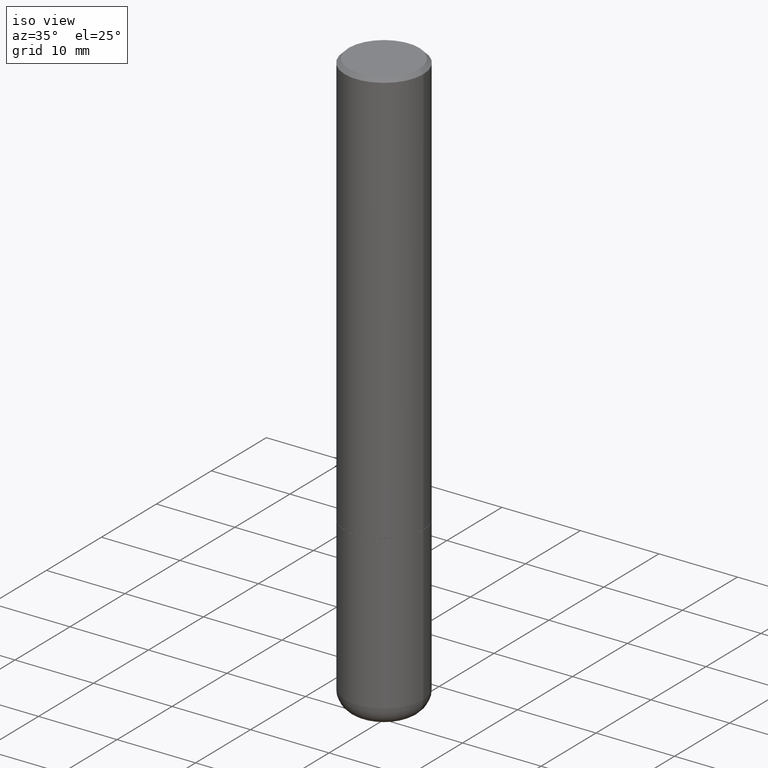
[diagram: clean part render]
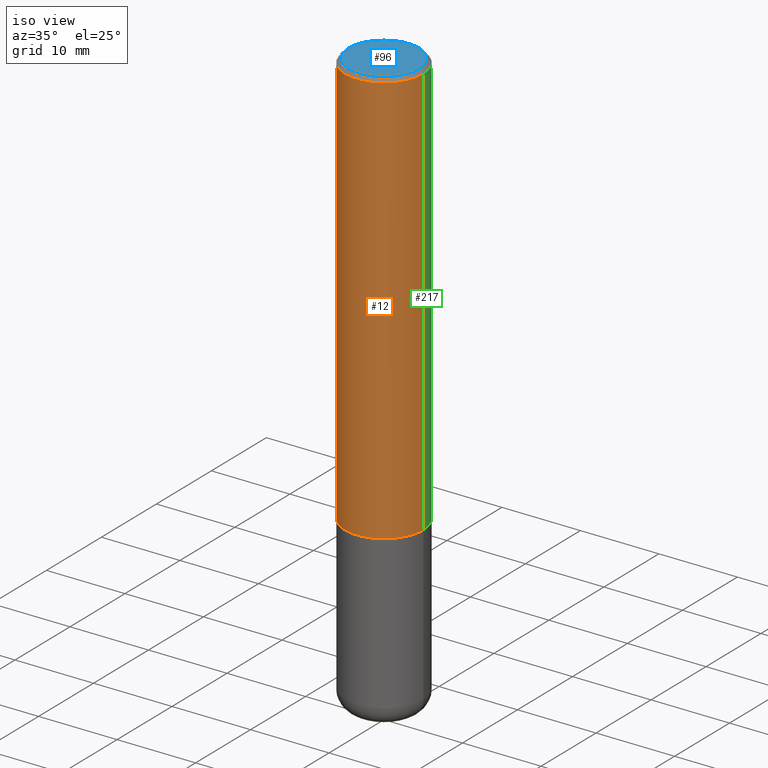
[diagram: same view with three faces highlighted in distinct colors, each labeled with its STEP entity id]
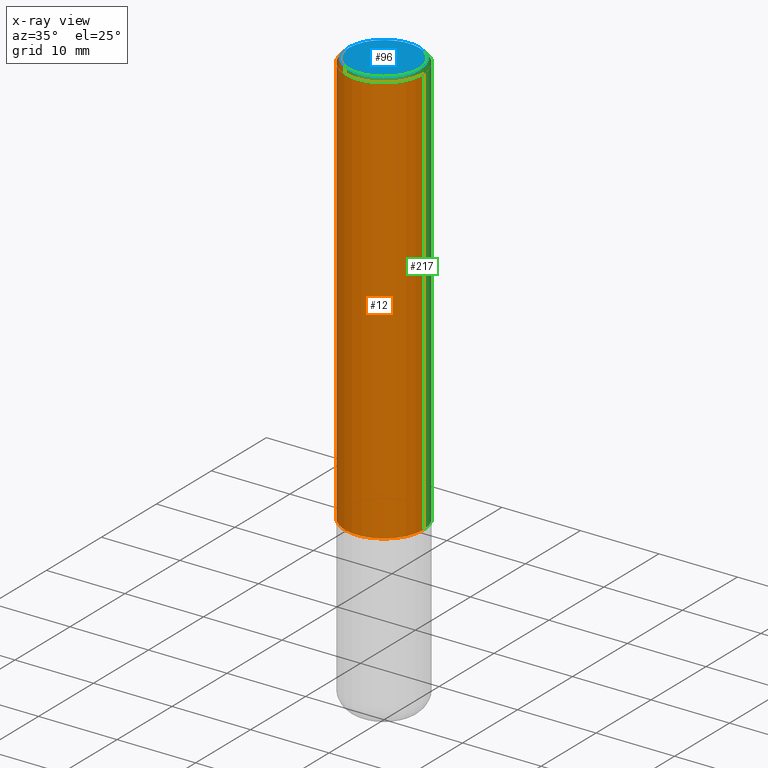
[diagram: x-ray of the same camera — body ghosted, the three highlighted faces saturated]
A machine part, iso view with three faces highlighted in distinct colors.
The next image is the same camera in x-ray (body ghosted, the three faces saturated) — at least one of them is partly hidden behind the body in this view.
Their STEP definitions:

[orange] entity #12 — the highlighted cylindrical surface (partial cylindrical patch) has radius 5 mm, axis along (-0, 0, 1).
#12 = ADVANCED_FACE ( 'NONE', ( #133 ), #412, .T. ) ;
#15 = EDGE_CURVE ( 'NONE', #222, #354, #60, .T. ) ;
#38 = VERTEX_POINT ( 'NONE', #95 ) ;
#60 = LINE ( 'NONE', #125, #128 ) ;
#74 = EDGE_CURVE ( 'NONE', #178, #222, #143, .T. ) ;
#89 = CIRCLE ( 'NONE', #406, 0.1968500000000000527 ) ;
#95 = CARTESIAN_POINT ( 'NONE',  ( -0.1968500000000000527, 1.304766576325678902E-15, -0.02000000000000004205 ) ) ;
#100 = DIRECTION ( 'NONE',  ( -2.445468806185136597E-29, 3.491481338843145583E-15, 1.000000000000000000 ) ) ;
#122 = AXIS2_PLACEMENT_3D ( 'NONE', #131, #100, #289 ) ;
#125 = CARTESIAN_POINT ( 'NONE',  ( 0.1968500000000001915, -1.374596203102542989E-15, 9.598753983154309266E-30 ) ) ;
#128 = VECTOR ( 'NONE', #250, 39.37007874015748143 ) ;
#131 = CARTESIAN_POINT ( 'NONE',  ( 5.100514289060338336E-29, -7.282182628425147921E-15, -2.085699999999999665 ) ) ;
#133 = FACE_OUTER_BOUND ( 'NONE', #337, .T. ) ;
#138 = DIRECTION ( 'NONE',  ( -2.445468806185136877E-29, 3.491481338843145188E-15, 1.000000000000000000 ) ) ;
#143 = CIRCLE ( 'NONE', #122, 0.1968500000000002748 ) ;
#145 = CARTESIAN_POINT ( 'NONE',  ( -0.1968500000000001915, 1.398703375343758577E-15, -9.682923725166790684E-30 ) ) ;
#165 = CARTESIAN_POINT ( 'NONE',  ( 0.000000000000000000, 0.000000000000000000, 0.000000000000000000 ) ) ;
#169 = CARTESIAN_POINT ( 'NONE',  ( -0.1968500000000002748, -2.277302752257245061E-15, -2.085699999999999665 ) ) ;
#172 = LINE ( 'NONE', #145, #385 ) ;
#178 = VERTEX_POINT ( 'NONE', #169 ) ;
#189 = ORIENTED_EDGE ( 'NONE', *, *, #345, .F. ) ;
#208 = ORIENTED_EDGE ( 'NONE', *, *, #15, .T. ) ;
#216 = DIRECTION ( 'NONE',  ( 1.000000000000000000, -6.982962677686266711E-15, 4.876176775795935793E-29 ) ) ;
#222 = VERTEX_POINT ( 'NONE', #297 ) ;
#235 = EDGE_CURVE ( 'NONE', #178, #38, #172, .T. ) ;
#239 = DIRECTION ( 'NONE',  ( 1.000000000000000000, -6.982962677686266711E-15, 0.000000000000000000 ) ) ;
#250 = DIRECTION ( 'NONE',  ( -2.445468806185136877E-29, 3.491481338843145188E-15, 1.000000000000000000 ) ) ;
#251 = AXIS2_PLACEMENT_3D ( 'NONE', #165, #315, #216 ) ;
#275 = ORIENTED_EDGE ( 'NONE', *, *, #74, .T. ) ;
#289 = DIRECTION ( 'NONE',  ( 1.000000000000000000, -6.982962677686269077E-15, 0.000000000000000000 ) ) ;
#297 = CARTESIAN_POINT ( 'NONE',  ( 0.1968500000000002748, -8.656778831527692685E-15, -2.085699999999999665 ) ) ;
#305 = DIRECTION ( 'NONE',  ( -2.445468806185136597E-29, 3.491481338843145583E-15, 1.000000000000000000 ) ) ;
#315 = DIRECTION ( 'NONE',  ( -2.445468806185136597E-29, 3.491481338843145583E-15, 1.000000000000000000 ) ) ;
#337 = EDGE_LOOP ( 'NONE', ( #368, #275, #208, #189 ) ) ;
#345 = EDGE_CURVE ( 'NONE', #38, #354, #89, .T. ) ;
#354 = VERTEX_POINT ( 'NONE', #395 ) ;
#368 = ORIENTED_EDGE ( 'NONE', *, *, #235, .F. ) ;
#385 = VECTOR ( 'NONE', #138, 39.37007874015748143 ) ;
#395 = CARTESIAN_POINT ( 'NONE',  ( 0.1968500000000000527, -1.420318657638189516E-15, -0.02000000000000004205 ) ) ;
#396 = CARTESIAN_POINT ( 'NONE',  ( 4.890937612370283668E-31, -6.982962677686305168E-17, -0.02000000000000004205 ) ) ;
#406 = AXIS2_PLACEMENT_3D ( 'NONE', #396, #305, #239 ) ;
#412 = CYLINDRICAL_SURFACE ( 'NONE', #251, 0.1968500000000001915 ) ;

[blue] entity #96 — the highlighted planar face has unit normal (0, -0, -1).
#7 = DIRECTION ( 'NONE',  ( -2.445468806185136597E-29, 3.491481338843145583E-15, 1.000000000000000000 ) ) ;
#11 = DIRECTION ( 'NONE',  ( -2.445468806185136597E-29, 3.491481338843145583E-15, 1.000000000000000000 ) ) ;
#14 = ORIENTED_EDGE ( 'NONE', *, *, #183, .T. ) ;
#23 = VERTEX_POINT ( 'NONE', #255 ) ;
#40 = CIRCLE ( 'NONE', #371, 0.1768499999999998129 ) ;
#43 = DIRECTION ( 'NONE',  ( 1.000000000000000000, -6.982962677686266711E-15, 4.870572768024644616E-29 ) ) ;
#44 = CARTESIAN_POINT ( 'NONE',  ( 1.234936949548814815E-15, 0.1768499999999998129, -5.128899187669496159E-16 ) ) ;
#55 = EDGE_LOOP ( 'NONE', ( #14, #380 ) ) ;
#78 = DIRECTION ( 'NONE',  ( 2.438088387897960049E-29, -3.491481338843145188E-15, -1.000000000000000000 ) ) ;
#79 = CARTESIAN_POINT ( 'NONE',  ( -5.114871930242576863E-45, 7.302681534864191472E-31, 2.091571120149201434E-16 ) ) ;
#96 = ADVANCED_FACE ( 'NONE', ( #234 ), #324, .F. ) ;
#105 = DIRECTION ( 'NONE',  ( -1.000000000000000000, 6.982962677686265922E-15, -4.876176775795935793E-29 ) ) ;
#160 = VERTEX_POINT ( 'NONE', #361 ) ;
#175 = CIRCLE ( 'NONE', #270, 0.1768499999999998129 ) ;
#183 = EDGE_CURVE ( 'NONE', #160, #23, #40, .T. ) ;
#200 = EDGE_CURVE ( 'NONE', #23, #160, #175, .T. ) ;
#234 = FACE_OUTER_BOUND ( 'NONE', #55, .T. ) ;
#255 = CARTESIAN_POINT ( 'NONE',  ( 0.1768499999999998129, -1.316798864272041352E-15, 2.091571120149290674E-16 ) ) ;
#266 = AXIS2_PLACEMENT_3D ( 'NONE', #44, #78, #105 ) ;
#270 = AXIS2_PLACEMENT_3D ( 'NONE', #318, #7, #321 ) ;
#318 = CARTESIAN_POINT ( 'NONE',  ( -5.114871930242576863E-45, 7.302681534864191472E-31, 2.091571120149201434E-16 ) ) ;
#321 = DIRECTION ( 'NONE',  ( 1.000000000000000000, -6.982962677686266711E-15, 4.870572768024644616E-29 ) ) ;
#324 = PLANE ( 'NONE',  #266 ) ;
#361 = CARTESIAN_POINT ( 'NONE',  ( -0.1768499999999998129, 1.269851762937247450E-15, 2.091571120149113920E-16 ) ) ;
#371 = AXIS2_PLACEMENT_3D ( 'NONE', #79, #11, #43 ) ;
#380 = ORIENTED_EDGE ( 'NONE', *, *, #200, .T. ) ;

[green] entity #217 — the highlighted cylindrical surface (partial cylindrical patch) has radius 5 mm, axis along (-0, 0, 1).
#2 = CARTESIAN_POINT ( 'NONE',  ( 5.100514289060338336E-29, -7.282182628425147921E-15, -2.085699999999999665 ) ) ;
#15 = EDGE_CURVE ( 'NONE', #222, #354, #60, .T. ) ;
#38 = VERTEX_POINT ( 'NONE', #95 ) ;
#42 = FACE_OUTER_BOUND ( 'NONE', #84, .T. ) ;
#50 = CARTESIAN_POINT ( 'NONE',  ( 4.890937612370283668E-31, -6.982962677686305168E-17, -0.02000000000000004205 ) ) ;
#60 = LINE ( 'NONE', #125, #128 ) ;
#77 = AXIS2_PLACEMENT_3D ( 'NONE', #50, #110, #333 ) ;
#84 = EDGE_LOOP ( 'NONE', ( #308, #150, #120, #375 ) ) ;
#85 = EDGE_CURVE ( 'NONE', #222, #178, #218, .T. ) ;
#95 = CARTESIAN_POINT ( 'NONE',  ( -0.1968500000000000527, 1.304766576325678902E-15, -0.02000000000000004205 ) ) ;
#108 = DIRECTION ( 'NONE',  ( 1.000000000000000000, -6.982962677686269077E-15, 0.000000000000000000 ) ) ;
#110 = DIRECTION ( 'NONE',  ( -2.445468806185136597E-29, 3.491481338843145583E-15, 1.000000000000000000 ) ) ;
#120 = ORIENTED_EDGE ( 'NONE', *, *, #389, .F. ) ;
#125 = CARTESIAN_POINT ( 'NONE',  ( 0.1968500000000001915, -1.374596203102542989E-15, 9.598753983154309266E-30 ) ) ;
#128 = VECTOR ( 'NONE', #250, 39.37007874015748143 ) ;
#138 = DIRECTION ( 'NONE',  ( -2.445468806185136877E-29, 3.491481338843145188E-15, 1.000000000000000000 ) ) ;
#145 = CARTESIAN_POINT ( 'NONE',  ( -0.1968500000000001915, 1.398703375343758577E-15, -9.682923725166790684E-30 ) ) ;
#150 = ORIENTED_EDGE ( 'NONE', *, *, #235, .T. ) ;
#154 = AXIS2_PLACEMENT_3D ( 'NONE', #294, #388, #236 ) ;
#169 = CARTESIAN_POINT ( 'NONE',  ( -0.1968500000000002748, -2.277302752257245061E-15, -2.085699999999999665 ) ) ;
#172 = LINE ( 'NONE', #145, #385 ) ;
#178 = VERTEX_POINT ( 'NONE', #169 ) ;
#217 = ADVANCED_FACE ( 'NONE', ( #42 ), #293, .T. ) ;
#218 = CIRCLE ( 'NONE', #342, 0.1968500000000002748 ) ;
#222 = VERTEX_POINT ( 'NONE', #297 ) ;
#235 = EDGE_CURVE ( 'NONE', #178, #38, #172, .T. ) ;
#236 = DIRECTION ( 'NONE',  ( 1.000000000000000000, -6.982962677686266711E-15, 4.876176775795935793E-29 ) ) ;
#250 = DIRECTION ( 'NONE',  ( -2.445468806185136877E-29, 3.491481338843145188E-15, 1.000000000000000000 ) ) ;
#278 = CIRCLE ( 'NONE', #77, 0.1968500000000000527 ) ;
#293 = CYLINDRICAL_SURFACE ( 'NONE', #154, 0.1968500000000001915 ) ;
#294 = CARTESIAN_POINT ( 'NONE',  ( 0.000000000000000000, 0.000000000000000000, 0.000000000000000000 ) ) ;
#297 = CARTESIAN_POINT ( 'NONE',  ( 0.1968500000000002748, -8.656778831527692685E-15, -2.085699999999999665 ) ) ;
#308 = ORIENTED_EDGE ( 'NONE', *, *, #85, .T. ) ;
#333 = DIRECTION ( 'NONE',  ( 1.000000000000000000, -6.982962677686266711E-15, 0.000000000000000000 ) ) ;
#342 = AXIS2_PLACEMENT_3D ( 'NONE', #2, #387, #108 ) ;
#354 = VERTEX_POINT ( 'NONE', #395 ) ;
#375 = ORIENTED_EDGE ( 'NONE', *, *, #15, .F. ) ;
#385 = VECTOR ( 'NONE', #138, 39.37007874015748143 ) ;
#387 = DIRECTION ( 'NONE',  ( -2.445468806185136597E-29, 3.491481338843145583E-15, 1.000000000000000000 ) ) ;
#388 = DIRECTION ( 'NONE',  ( -2.445468806185136597E-29, 3.491481338843145583E-15, 1.000000000000000000 ) ) ;
#389 = EDGE_CURVE ( 'NONE', #354, #38, #278, .T. ) ;
#395 = CARTESIAN_POINT ( 'NONE',  ( 0.1968500000000000527, -1.420318657638189516E-15, -0.02000000000000004205 ) ) ;